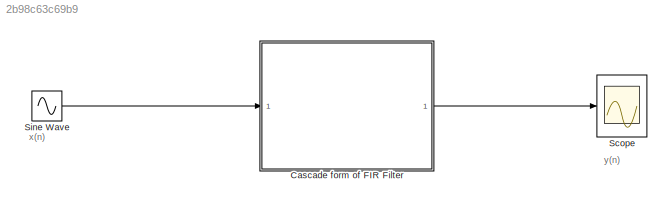
MODEL slx_2b98c63c69b9
KIND model
CONFIG AbsTol = auto
CONFIG EnableMultiTasking = off
CONFIG FixedStep = auto
CONFIG MaxStep = auto
CONFIG MinStep = auto
CONFIG RelTol = 1e-3
CONFIG SampleTimeConstraint = Unconstrained
CONFIG SolverName = VariableStepAuto
CONFIG StartTime = 0.0
CONFIG StopTime = 10.0
BLOCK [ModelReference] Cascade form of FIR Filter
  ModelNameDialog = Cascade_form
  ModelReferenceVersion = 1.6
  Ports = [1, 1]
BLOCK [Scope] Scope
  Floating = off
  NumInputPorts = 1
  Ports = [1]
  ScopeSpecificationString = Simulink.scopes.TimeScopeBlockCfg('CurrentConfiguration', extmgr.ConfigurationSet(extmgr.Configuration('Core','General UI',true),extmgr.Configuration('Core','Source UI',true),extmgr.Configuration('Sources','WiredSimulink',true),extmgr.Configuration('Visuals','Time Domain',true,'SerializedDisplays',{struct('MinYLimReal','-2.73796','MaxYLimReal','2.74215','YLabelReal','','MinYLimMag','0.00000','MaxY...<+1324ch>
BLOCK [Sin] Sine Wave
  Ports = [0, 1]
  SampleTime = 0
ANNOTATION (root): x(n)
ANNOTATION (root): y(n)
LINE Cascade form of FIR Filter:1 -> Scope:1
LINE Sine Wave:1 -> Cascade form of FIR Filter:1
